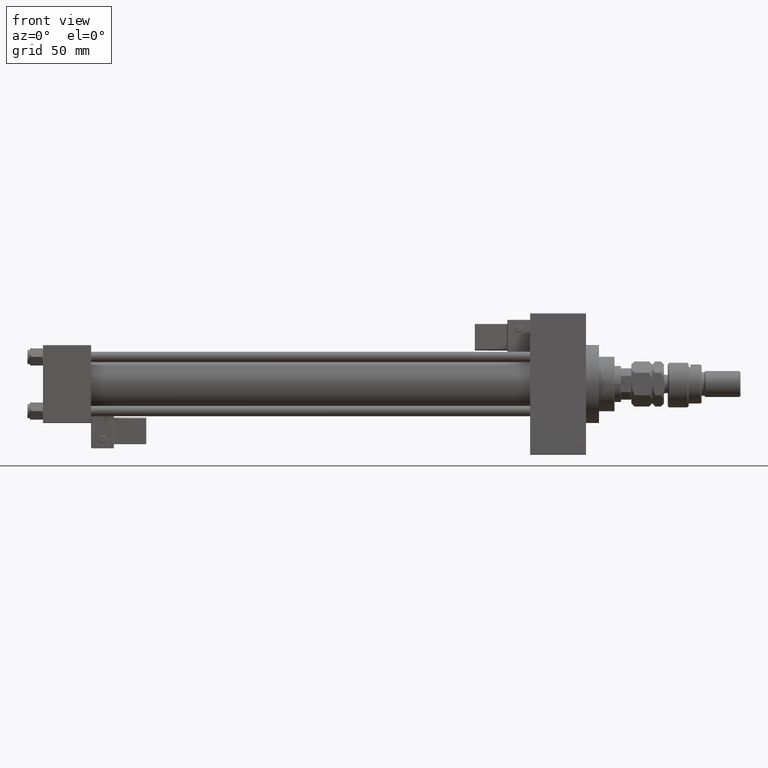
[diagram: clean part render]
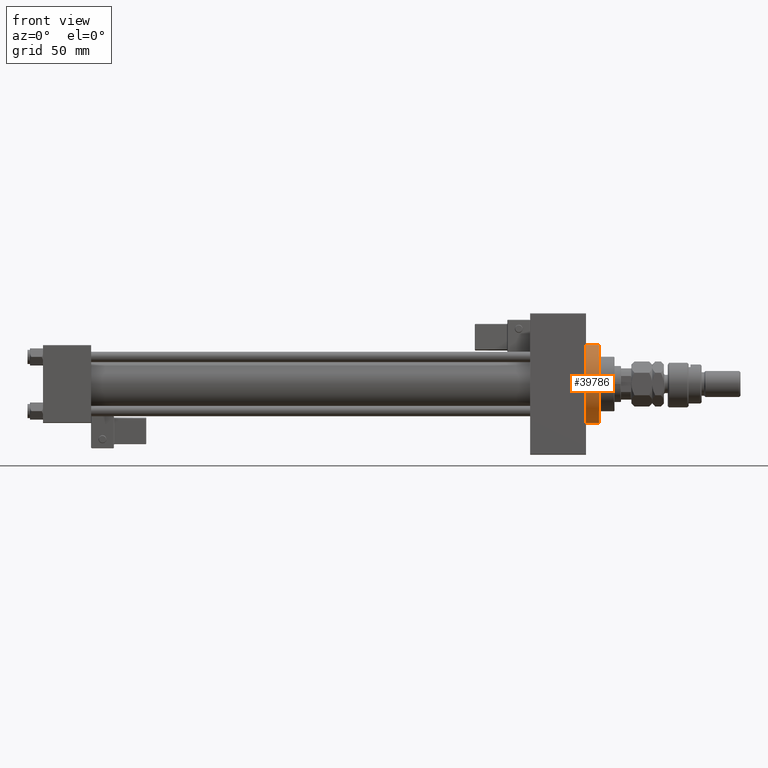
[diagram: same view with one face highlighted and labeled with its STEP entity id]
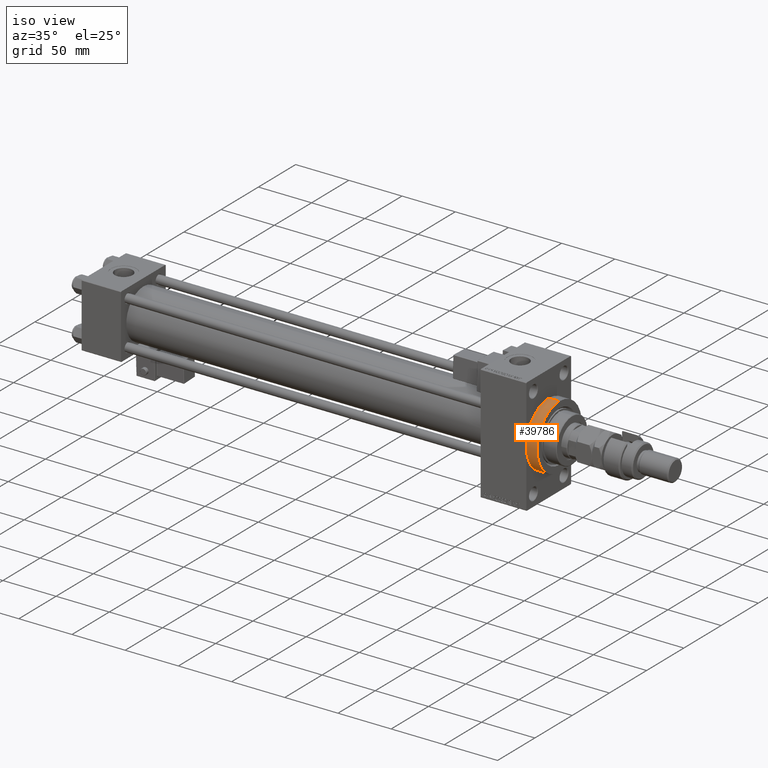
[diagram: same view with one face highlighted and labeled with its STEP entity id]
A machine part, front view. The second image highlights one B-rep face of the part: STEP entity #39786.
A second angle (iso view) of the same face is appended — the face is thin or edge-on in the first view.
In plain terms, the highlighted cylindrical surface (partial cylindrical patch) has radius 30 mm, axis along (-1, -0, -0).
Its self-contained STEP definition (entity closure, byte-faithful):
#1792 = CARTESIAN_POINT ( 'NONE',  ( 418.0000000000000000, 0.000000000000000000, 0.000000000000000000 ) ) ;
#2421 = LINE ( 'NONE', #19428, #15185 ) ;
#3161 = DIRECTION ( 'NONE',  ( -1.000000000000000000, -0.000000000000000000, -0.000000000000000000 ) ) ;
#3282 = VERTEX_POINT ( 'NONE', #7249 ) ;
#4025 = LINE ( 'NONE', #16499, #22333 ) ;
#4972 = DIRECTION ( 'NONE',  ( 0.000000000000000000, 0.000000000000000000, -1.000000000000000000 ) ) ;
#5621 = CARTESIAN_POINT ( 'NONE',  ( 428.0000000000000000, 0.000000000000000000, 0.000000000000000000 ) ) ;
#7249 = CARTESIAN_POINT ( 'NONE',  ( 418.0000000000000000, 3.673940397442059178E-15, -30.00000000000000000 ) ) ;
#8877 = ORIENTED_EDGE ( 'NONE', *, *, #21543, .F. ) ;
#9081 = EDGE_CURVE ( 'NONE', #34156, #40658, #4025, .T. ) ;
#9887 = CYLINDRICAL_SURFACE ( 'NONE', #37481, 30.00000000000000000 ) ;
#10258 = VERTEX_POINT ( 'NONE', #19971 ) ;
#15159 = DIRECTION ( 'NONE',  ( -1.000000000000000000, -0.000000000000000000, -0.000000000000000000 ) ) ;
#15185 = VECTOR ( 'NONE', #15159, 1000.000000000000000 ) ;
#16114 = CARTESIAN_POINT ( 'NONE',  ( 418.0000000000000000, -30.00000000000000000, 0.000000000000000000 ) ) ;
#16499 = CARTESIAN_POINT ( 'NONE',  ( 428.0000000000000000, 0.000000000000000000, 30.00000000000000000 ) ) ;
#17630 = CARTESIAN_POINT ( 'NONE',  ( 428.0000000000000000, 0.000000000000000000, 30.00000000000000000 ) ) ;
#18354 = AXIS2_PLACEMENT_3D ( 'NONE', #47852, #18634, #51843 ) ;
#18634 = DIRECTION ( 'NONE',  ( 1.000000000000000000, 0.000000000000000000, 0.000000000000000000 ) ) ;
#19326 = DIRECTION ( 'NONE',  ( 0.000000000000000000, 0.000000000000000000, -1.000000000000000000 ) ) ;
#19428 = CARTESIAN_POINT ( 'NONE',  ( 428.0000000000000000, 3.673940397442059178E-15, -30.00000000000000000 ) ) ;
#19971 = CARTESIAN_POINT ( 'NONE',  ( 428.0000000000000000, 3.673940397442059178E-15, -30.00000000000000000 ) ) ;
#21543 = EDGE_CURVE ( 'NONE', #10258, #3282, #2421, .T. ) ;
#22333 = VECTOR ( 'NONE', #25008, 1000.000000000000000 ) ;
#22758 = AXIS2_PLACEMENT_3D ( 'NONE', #1792, #38722, #19326 ) ;
#23502 = ORIENTED_EDGE ( 'NONE', *, *, #40027, .T. ) ;
#24549 = EDGE_CURVE ( 'NONE', #34156, #10258, #30227, .T. ) ;
#25008 = DIRECTION ( 'NONE',  ( -1.000000000000000000, -0.000000000000000000, -0.000000000000000000 ) ) ;
#25919 = ORIENTED_EDGE ( 'NONE', *, *, #28385, .T. ) ;
#27711 = ORIENTED_EDGE ( 'NONE', *, *, #9081, .T. ) ;
#28385 = EDGE_CURVE ( 'NONE', #40658, #33629, #32086, .T. ) ;
#30227 = CIRCLE ( 'NONE', #18354, 30.00000000000000000 ) ;
#32086 = CIRCLE ( 'NONE', #22758, 30.00000000000000000 ) ;
#33547 = DIRECTION ( 'NONE',  ( 0.000000000000000000, 0.000000000000000000, 1.000000000000000000 ) ) ;
#33629 = VERTEX_POINT ( 'NONE', #16114 ) ;
#34156 = VERTEX_POINT ( 'NONE', #17630 ) ;
#34949 = CIRCLE ( 'NONE', #48539, 30.00000000000000000 ) ;
#37481 = AXIS2_PLACEMENT_3D ( 'NONE', #5621, #3161, #33547 ) ;
#38310 = CARTESIAN_POINT ( 'NONE',  ( 418.0000000000000000, 0.000000000000000000, 30.00000000000000000 ) ) ;
#38722 = DIRECTION ( 'NONE',  ( 1.000000000000000000, 0.000000000000000000, 0.000000000000000000 ) ) ;
#39786 = ADVANCED_FACE ( 'NONE', ( #46294 ), #9887, .T. ) ;
#40027 = EDGE_CURVE ( 'NONE', #33629, #3282, #34949, .T. ) ;
#40647 = EDGE_LOOP ( 'NONE', ( #8877, #45794, #27711, #25919, #23502 ) ) ;
#40658 = VERTEX_POINT ( 'NONE', #38310 ) ;
#41398 = DIRECTION ( 'NONE',  ( 1.000000000000000000, 0.000000000000000000, 0.000000000000000000 ) ) ;
#45794 = ORIENTED_EDGE ( 'NONE', *, *, #24549, .F. ) ;
#46294 = FACE_OUTER_BOUND ( 'NONE', #40647, .T. ) ;
#47852 = CARTESIAN_POINT ( 'NONE',  ( 428.0000000000000000, 0.000000000000000000, 0.000000000000000000 ) ) ;
#48539 = AXIS2_PLACEMENT_3D ( 'NONE', #49648, #41398, #4972 ) ;
#49648 = CARTESIAN_POINT ( 'NONE',  ( 418.0000000000000000, 0.000000000000000000, 0.000000000000000000 ) ) ;
#51843 = DIRECTION ( 'NONE',  ( 0.000000000000000000, 0.000000000000000000, -1.000000000000000000 ) ) ;